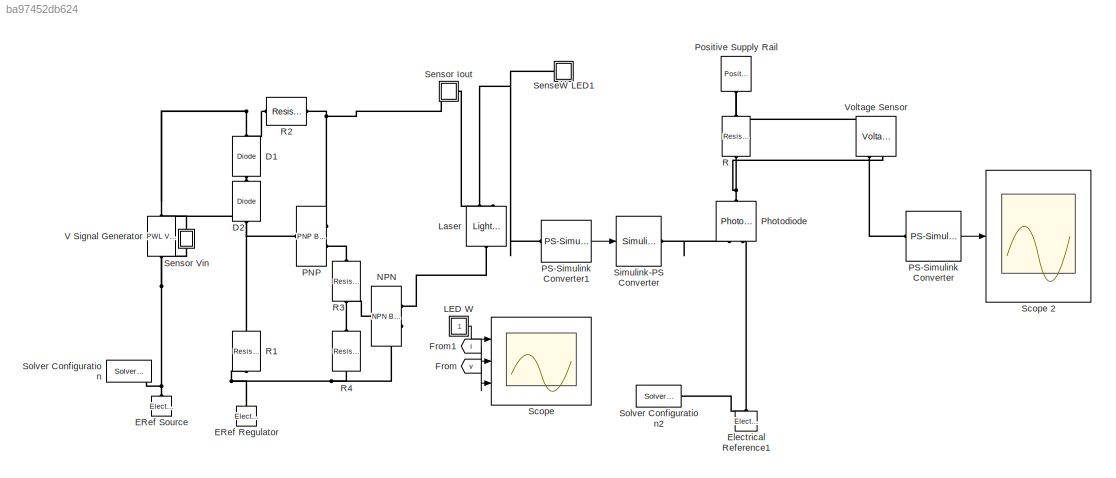
MODEL slx_ba97452db624
KIND model
CONFIG AbsTol = 1e-3
CONFIG EnableMultiTasking = on
CONFIG FixedStep = auto
CONFIG MaxStep = auto
CONFIG MinStep = auto
CONFIG RelTol = 1e-3
CONFIG SampleTimeConstraint = Unconstrained
CONFIG Solver = VariableStepAuto
CONFIG SolverName = VariableStepAuto
CONFIG StartTime = 0.0
CONFIG StopTime = 10
BLOCK [Reference] D1  REF=elec_lib/Semiconductor
Devices/Diode
  Ports = [0, 0, 0, 0, 0, 1, 1]
  SourceBlock = elec_lib/Semiconductor\nDevices/Diode
  SourceProductBaseCode = SN
  SourceProductName = Simscape Electronics
  SourceType = Diode
BLOCK [Reference] D2  REF=elec_lib/Semiconductor
Devices/Diode
  Ports = [0, 0, 0, 0, 0, 1, 1]
  SourceBlock = elec_lib/Semiconductor\nDevices/Diode
  SourceProductBaseCode = SN
  SourceProductName = Simscape Electronics
  SourceType = Diode
BLOCK [Reference] ERef Regulator  REF=fl_lib/Electrical/Electrical Elements/Electrical Reference
  Ports = [0, 0, 0, 0, 0, 1]
  SourceBlock = fl_lib/Electrical/Electrical Elements/Electrical Reference
  SourceProductName = Foundation Library
  SourceType = Electrical Reference
BLOCK [Reference] ERef Source  REF=fl_lib/Electrical/Electrical Elements/Electrical Reference
  Ports = [0, 0, 0, 0, 0, 1]
  SourceBlock = fl_lib/Electrical/Electrical Elements/Electrical Reference
  SourceProductName = Foundation Library
  SourceType = Electrical Reference
BLOCK [Reference] Electrical Reference1  REF=fl_lib/Electrical/Electrical Elements/Electrical Reference
  Ports = [0, 0, 0, 0, 0, 1]
  SourceBlock = fl_lib/Electrical/Electrical Elements/Electrical Reference
  SourceProductBaseCode = SS
  SourceProductName = Simscape
  SourceType = Electrical Reference
BLOCK [From] From
  GotoTag = v
  TagVisibility = global
BLOCK [From] From1
  GotoTag = i
  TagVisibility = global
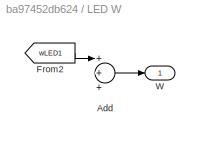
BLOCK [SubSystem] LED W
  Ports = [0, 1]
  RequestExecContextInheritance = off
  Variant = off
BLOCK [Sum] LED W/Add
  InputSameDT = off
  Inputs = +++
  OutDataTypeStr = Inherit: Inherit via internal rule
  Ports = [3, 1]
  SaturateOnIntegerOverflow = off
BLOCK [From] LED W/From2
  GotoTag = wLED1
  TagVisibility = global
BLOCK [Outport] LED W/W
  IconDisplay = Port number
BLOCK [Reference] Laser  REF=elec_lib/Sensors/Light-Emitting Diode
  Ports = [0, 0, 0, 0, 0, 2, 1]
  SourceBlock = elec_lib/Sensors/Light-Emitting Diode
  SourceProductBaseCode = SN
  SourceProductName = Simscape Electronics
  SourceType = Light-Emitting Diode
BLOCK [Reference] NPN  REF=elec_lib/Semiconductor
Devices/NPN Bipolar
Transistor
  Ports = [0, 0, 0, 0, 0, 1, 2]
  SourceBlock = elec_lib/Semiconductor\nDevices/NPN Bipolar\nTransistor
  SourceProductBaseCode = SN
  SourceProductName = Simscape Electronics
  SourceType = NPN Bipolar\nTransistor
BLOCK [Reference] PNP  REF=elec_lib/Semiconductor
Devices/PNP Bipolar
Transistor
  Ports = [0, 0, 0, 0, 0, 1, 2]
  SourceBlock = elec_lib/Semiconductor\nDevices/PNP Bipolar\nTransistor
  SourceProductBaseCode = SN
  SourceProductName = Simscape Electronics
  SourceType = PNP Bipolar\nTransistor
BLOCK [Reference] PS-Simulink Converter  REF=nesl_utility/PS-Simulink
Converter
  Ports = [0, 1, 0, 0, 0, 1]
  SourceBlock = nesl_utility/PS-Simulink\nConverter
  SourceProductBaseCode = SS
  SourceProductName = Simscape
  SourceType = PS-Simulink\nConverter
BLOCK [Reference] PS-Simulink Converter1  REF=nesl_utility/PS-Simulink
Converter
  Ports = [0, 1, 0, 0, 0, 1]
  SourceBlock = nesl_utility/PS-Simulink\nConverter
  SourceProductBaseCode = SS
  SourceProductName = Simscape
  SourceType = PS-Simulink\nConverter
BLOCK [Reference] Photodiode  REF=elec_lib/Sensors/Photodiode
  Ports = [0, 0, 0, 0, 0, 2, 1]
  SourceBlock = elec_lib/Sensors/Photodiode
  SourceProductBaseCode = SN
  SourceProductName = Simscape Electronics
  SourceType = Photodiode
BLOCK [Reference] Positive Supply Rail  REF=elec_lib/Sources/Positive Supply Rail
  Ports = [0, 0, 0, 0, 0, 0, 1]
  SourceBlock = elec_lib/Sources/Positive Supply Rail
  SourceProductBaseCode = SN
  SourceProductName = Simscape Electronics
  SourceType = Positive Supply Rail
BLOCK [Reference] R  REF=fl_lib/Electrical/Electrical Elements/Resistor
  Ports = [0, 0, 0, 0, 0, 1, 1]
  SourceBlock = fl_lib/Electrical/Electrical Elements/Resistor
  SourceProductBaseCode = SS
  SourceProductName = Simscape
  SourceType = Resistor
BLOCK [Reference] R1  REF=elec_lib/Passive Devices/Resistor
  Ports = [0, 0, 0, 0, 0, 1, 1]
  SourceBlock = elec_lib/Passive Devices/Resistor
  SourceProductBaseCode = SN
  SourceProductName = Simscape Electronics
  SourceType = Resistor
BLOCK [Reference] R2  REF=elec_lib/Passive Devices/Resistor
  Ports = [0, 0, 0, 0, 0, 1, 1]
  SourceBlock = elec_lib/Passive Devices/Resistor
  SourceProductBaseCode = SN
  SourceProductName = Simscape Electronics
  SourceType = Resistor
BLOCK [Reference] R3  REF=elec_lib/Passive Devices/Resistor
  Ports = [0, 0, 0, 0, 0, 1, 1]
  SourceBlock = elec_lib/Passive Devices/Resistor
  SourceProductBaseCode = SN
  SourceProductName = Simscape Electronics
  SourceType = Resistor
BLOCK [Reference] R4  REF=elec_lib/Passive Devices/Resistor
  Ports = [0, 0, 0, 0, 0, 1, 1]
  SourceBlock = elec_lib/Passive Devices/Resistor
  SourceProductBaseCode = SN
  SourceProductName = Simscape Electronics
  SourceType = Resistor
BLOCK [Scope] Scope
  NumInputPorts = 3
  Ports = [3]
  ScopeSpecificationString = Simulink.scopes.TimeScopeBlockCfg('CurrentConfiguration', extmgr.ConfigurationSet(extmgr.Configuration('Core','General UI',true),extmgr.Configuration('Core','Source UI',true),extmgr.Configuration('Sources','WiredSimulink',true),extmgr.Configuration('Visuals','Time Domain',true,'SerializedDisplays',{struct('MinYLimReal','-0.0545','MaxYLimReal','0.49046','YLabelReal','Power (W)','MinYLimMag','0.0000...<+2950ch>
BLOCK [Scope] Scope 2
  NumInputPorts = 1
  Ports = [1]
  ScopeSpecificationString = Simulink.scopes.TimeScopeBlockCfg('CurrentConfiguration', extmgr.ConfigurationSet(extmgr.Configuration('Core','General UI',true),extmgr.Configuration('Core','Source UI',true),extmgr.Configuration('Sources','WiredSimulink',true,'DataLoggingVariableName','ScopeData1'),extmgr.Configuration('Visuals','Time Domain',true,'SerializedDisplays',{struct('MinYLimReal','-0.00125','MaxYLimReal','0.01221','YLab...<+1435ch>
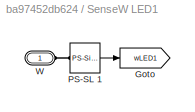
BLOCK [SubSystem] SenseW LED1
  Ports = [0, 0, 0, 0, 0, 1]
  RequestExecContextInheritance = off
  Variant = off
BLOCK [Goto] SenseW LED1/Goto
  GotoTag = wLED1
  TagVisibility = global
BLOCK [Reference] SenseW LED1/PS-SL 1  REF=nesl_utility/PS-Simulink
Converter
  Ports = [0, 1, 0, 0, 0, 1]
  SourceBlock = nesl_utility/PS-Simulink\nConverter
  SourceProductBaseCode = SS
  SourceProductName = Simscape
  SourceType = PS-Simulink\nConverter
BLOCK [PMIOPort] SenseW LED1/W
  Port = 1
  Side = Left
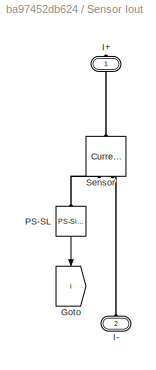
BLOCK [SubSystem] Sensor Iout
  Ports = [0, 0, 0, 0, 0, 1, 1]
  RequestExecContextInheritance = off
  Variant = off
BLOCK [Goto] Sensor Iout/Goto
  GotoTag = i
  TagVisibility = global
BLOCK [PMIOPort] Sensor Iout/I+
  Port = 1
  Side = Right
BLOCK [PMIOPort] Sensor Iout/I-
  Port = 2
  Side = Left
BLOCK [Reference] Sensor Iout/PS-SL  REF=nesl_utility/PS-Simulink
Converter
  Ports = [0, 1, 0, 0, 0, 1]
  SourceBlock = nesl_utility/PS-Simulink\nConverter
  SourceProductBaseCode = SS
  SourceProductName = Simscape
  SourceType = PS-Simulink\nConverter
BLOCK [Reference] Sensor Iout/Sensor  REF=fl_lib/Electrical/Electrical Sensors/Current Sensor
  Ports = [0, 0, 0, 0, 0, 1, 2]
  SourceBlock = fl_lib/Electrical/Electrical Sensors/Current Sensor
  SourceProductName = Foundation Library
  SourceType = Current Sensor
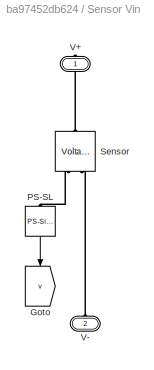
BLOCK [SubSystem] Sensor Vin
  Ports = [0, 0, 0, 0, 0, 1, 1]
  RequestExecContextInheritance = off
  Variant = off
BLOCK [Goto] Sensor Vin/Goto
  GotoTag = v
  TagVisibility = global
BLOCK [Reference] Sensor Vin/PS-SL  REF=nesl_utility/PS-Simulink
Converter
  Ports = [0, 1, 0, 0, 0, 1]
  SourceBlock = nesl_utility/PS-Simulink\nConverter
  SourceProductBaseCode = SS
  SourceProductName = Simscape
  SourceType = PS-Simulink\nConverter
BLOCK [Reference] Sensor Vin/Sensor  REF=fl_lib/Electrical/Electrical Sensors/Voltage Sensor
  Ports = [0, 0, 0, 0, 0, 1, 2]
  SourceBlock = fl_lib/Electrical/Electrical Sensors/Voltage Sensor
  SourceProductName = Foundation Library
  SourceType = Voltage Sensor
BLOCK [PMIOPort] Sensor Vin/V+
  Port = 1
  Side = Right
BLOCK [PMIOPort] Sensor Vin/V-
  Port = 2
  Side = Left
BLOCK [Reference] Simulink-PS Converter  REF=nesl_utility/Simulink-PS
Converter
  Ports = [1, 0, 0, 0, 0, 0, 1]
  SourceBlock = nesl_utility/Simulink-PS\nConverter
  SourceProductBaseCode = SS
  SourceProductName = Simscape
  SourceType = Simulink-PS\nConverter
BLOCK [Reference] Solver Configuration  REF=nesl_utility/Solver
Configuration
  Ports = [0, 0, 0, 0, 0, 0, 1]
  SourceBlock = nesl_utility/Solver\nConfiguration
  SourceProductBaseCode = SS
  SourceProductName = Simscape
  SourceType = Solver\nConfiguration
BLOCK [Reference] Solver Configuration2  REF=nesl_utility/Solver
Configuration
  Ports = [0, 0, 0, 0, 0, 0, 1]
  SourceBlock = nesl_utility/Solver\nConfiguration
  SourceProductBaseCode = SS
  SourceProductName = Simscape
  SourceType = Solver\nConfiguration
BLOCK [Reference] V  Signal Generator  REF=elec_lib/Additional
Components/SPICE-Compatible
Components/Sources/PWL Voltage Source
  Ports = [0, 0, 0, 0, 0, 1, 1]
  SourceBlock = elec_lib/Additional\nComponents/SPICE-Compatible\nComponents/Sources/PWL Voltage Source
  SourceProductBaseCode = SN
  SourceProductName = Simscape Electronics
  SourceType = PWL Voltage Source
BLOCK [Reference] Voltage Sensor  REF=fl_lib/Electrical/Electrical Sensors/Voltage Sensor
  Ports = [0, 0, 0, 0, 0, 1, 2]
  SourceBlock = fl_lib/Electrical/Electrical Sensors/Voltage Sensor
  SourceProductBaseCode = SS
  SourceProductName = Simscape
  SourceType = Voltage Sensor
LINE From1:1 -> Scope:2
LINE From:1 -> Scope:3
LINE LED W/Add:1 -> LED W/W:1
LINE LED W/From2:1 -> LED W/Add:1
LINE LED W:1 -> Scope:1
LINE PS-Simulink Converter1:1 -> Simulink-PS Converter:1
LINE PS-Simulink Converter:1 -> Scope 2:1
LINE SenseW LED1/PS-SL 1:1 -> SenseW LED1/Goto:1
LINE Sensor Iout/PS-SL:1 -> Sensor Iout/Goto:1
LINE Sensor Vin/PS-SL:1 -> Sensor Vin/Goto:1
PNET net1: D1:LConn1 -- R2:LConn1 -- Sensor Vin:RConn1 -- V  Signal Generator:LConn1
PLINE D1:RConn1 -- D2:LConn1
PNET net2: D2:RConn1 -- PNP:LConn1 -- R1:LConn1
PNET net3: ERef Regulator:LConn1 -- NPN:RConn2 -- R1:RConn1 -- R4:RConn1
PNET net4: ERef Source:LConn1 -- Sensor Vin:LConn1 -- Solver Configuration:RConn1 -- V  Signal Generator:RConn1
PNET net5: Electrical Reference1:LConn1 -- Photodiode:LConn2 -- Solver Configuration2:RConn1
PNET net6: Laser:LConn1 -- PS-Simulink Converter1:LConn1 -- SenseW LED1:LConn1
PLINE Laser:LConn2 -- Sensor Iout:LConn1
PLINE Laser:RConn1 -- NPN:RConn1
PNET net7: NPN:LConn1 -- R3:RConn1 -- R4:LConn1
PNET net8: PNP:RConn1 -- R2:RConn1 -- Sensor Iout:RConn1
PLINE PNP:RConn2 -- R3:LConn1
PLINE PS-Simulink Converter:LConn1 -- Voltage Sensor:RConn1
PLINE Photodiode:LConn1 -- Simulink-PS Converter:RConn1
PNET net9: Photodiode:RConn1 -- R:LConn1 -- Voltage Sensor:RConn2
PNET net10: Positive Supply Rail:RConn1 -- R:RConn1 -- Voltage Sensor:LConn1
PLINE SenseW LED1/PS-SL 1:LConn1 -- SenseW LED1/W:RConn1
PLINE Sensor Iout/I+:RConn1 -- Sensor Iout/Sensor:LConn1
PLINE Sensor Iout/I-:RConn1 -- Sensor Iout/Sensor:RConn2
PLINE Sensor Iout/PS-SL:LConn1 -- Sensor Iout/Sensor:RConn1
PLINE Sensor Vin/PS-SL:LConn1 -- Sensor Vin/Sensor:RConn1
PLINE Sensor Vin/Sensor:LConn1 -- Sensor Vin/V+:RConn1
PLINE Sensor Vin/Sensor:RConn2 -- Sensor Vin/V-:RConn1
note: PNET lines group multi-terminal physical nets as a canonical sorted terminal list (undirected conserving connections); 2-terminal nets keep the pairwise PLINE form
